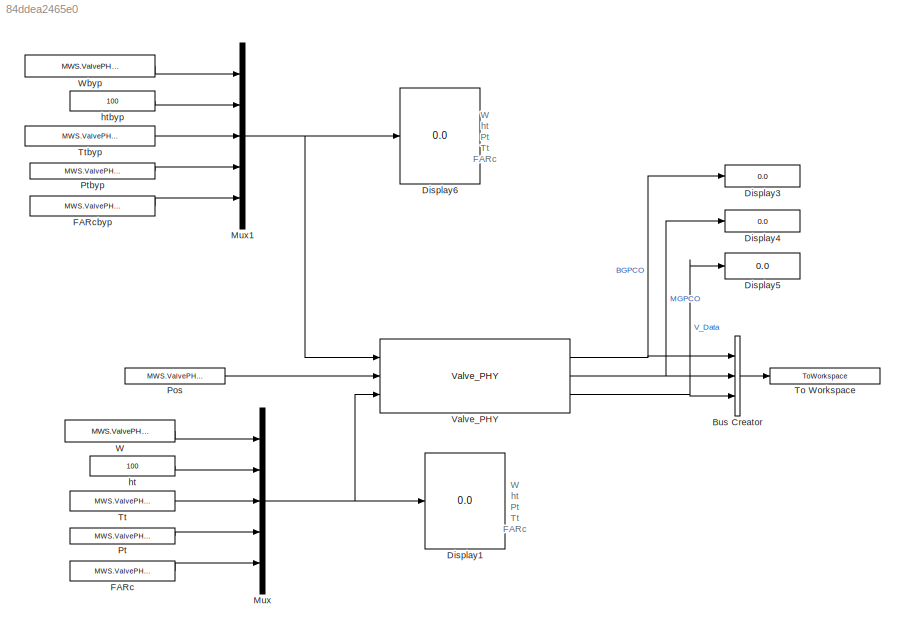
MODEL slx_84ddea2465e0
KIND model
CONFIG AbsTol = auto
CONFIG EnableMultiTasking = on
CONFIG FixedStep = 1
CONFIG MaxStep = auto
CONFIG MinStep = auto
CONFIG RelTol = 1e-3
CONFIG SampleTimeConstraint = Unconstrained
CONFIG Solver = FixedStepDiscrete
CONFIG SolverName = FixedStepDiscrete
CONFIG StartTime = 0.0
CONFIG StopTime = 1
BLOCK [BusCreator] Bus Creator
  DisplayOption = bar
  InheritFromInputs = on
  Inputs = 3
  Ports = [3, 1]
BLOCK [Display] Display1
  Decimation = 1
  Ports = [1]
BLOCK [Display] Display3
  Decimation = 1
  Format = long
  Ports = [1]
BLOCK [Display] Display4
  Decimation = 1
  Format = long
  Ports = [1]
BLOCK [Display] Display5
  Decimation = 1
  Ports = [1]
BLOCK [Display] Display6
  Decimation = 1
  Ports = [1]
BLOCK [Constant] FARc
  Value = MWS.ValvePHY.FARc
BLOCK [Constant] FARcbyp
  Value = MWS.ValvePHY.FARcbyp
BLOCK [Mux] Mux
  DisplayOption = bar
  Inputs = 5
  Ports = [5, 1]
BLOCK [Mux] Mux1
  DisplayOption = bar
  Inputs = 5
  Ports = [5, 1]
BLOCK [Constant] Pos
  Value = MWS.ValvePHY.Pos
BLOCK [Constant] Pt
  Value = MWS.ValvePHY.Pt
BLOCK [Constant] Ptbyp
  Value = MWS.ValvePHY.Ptbyp
BLOCK [ToWorkspace] To Workspace
  MaxDataPoints = inf
  Ports = [1]
  SampleTime = -1
  VariableName = TB_Output
BLOCK [Constant] Tt
  Value = MWS.ValvePHY.Tt
BLOCK [Constant] Ttbyp
  Value = MWS.ValvePHY.Ttbyp
BLOCK [Reference] Valve_PHY  REF=Lib_Turbo_ValvePHY_TMATS/Valve_PHY
  Ports = [3, 3]
  SourceBlock = Lib_Turbo_ValvePHY_TMATS/Valve_PHY
  SourceType = T-MATS: Valve_Phy Library Block
BLOCK [Constant] W
  Value = MWS.ValvePHY.W
BLOCK [Constant] Wbyp
  Value = MWS.ValvePHY.Wbyp
BLOCK [Constant] ht
  Value = 100
BLOCK [Constant] htbyp
  Value = 100
ANNOTATION (root): W ht Pt Tt FARc
LINE Bus Creator:1 -> To Workspace:1
LINE FARc:1 -> Mux:5
LINE FARcbyp:1 -> Mux1:5
NET Mux1:1 -> Display6:1, Valve_PHY:1
NET Mux:1 -> Display1:1, Valve_PHY:3
LINE Pos:1 -> Valve_PHY:2
LINE Pt:1 -> Mux:4
LINE Ptbyp:1 -> Mux1:4
LINE Tt:1 -> Mux:3
LINE Ttbyp:1 -> Mux1:3
NET Valve_PHY:1 -> Bus Creator:1, Display3:1
NET Valve_PHY:2 -> Bus Creator:2, Display4:1
NET Valve_PHY:3 -> Bus Creator:3, Display5:1
LINE W:1 -> Mux:1
LINE Wbyp:1 -> Mux1:1
LINE ht:1 -> Mux:2
LINE htbyp:1 -> Mux1:2
note: NET lines group one-source signal fan-out (src -> all destinations, sorted); 1:1 wires keep LINE
